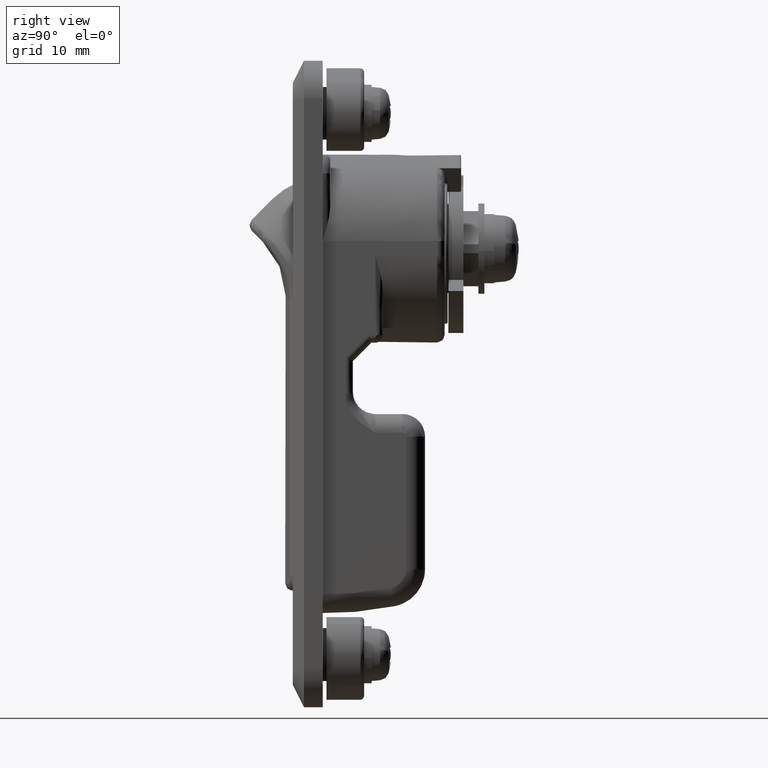
[diagram: clean part render]
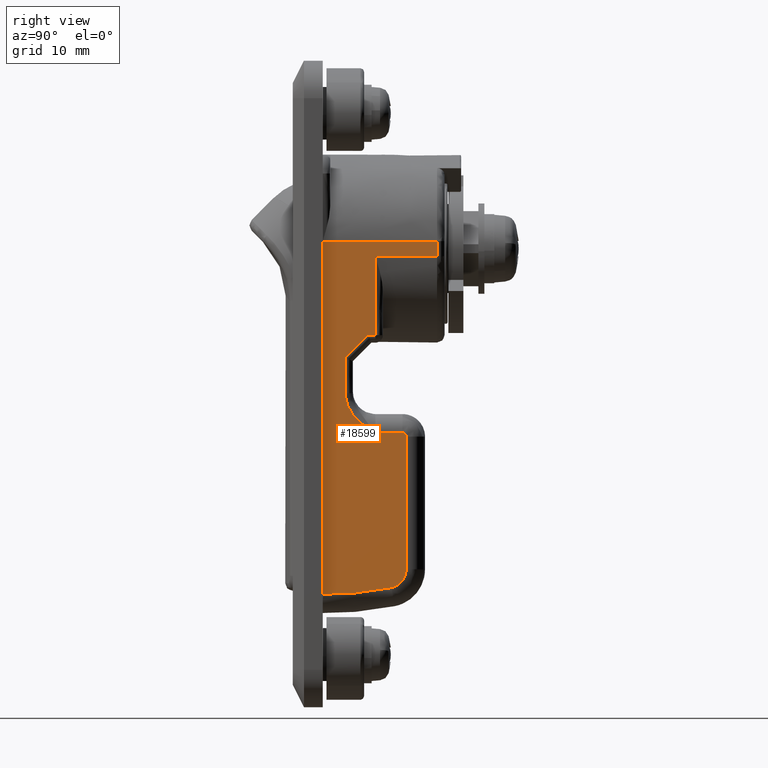
[diagram: same view with one face highlighted and labeled with its STEP entity id]
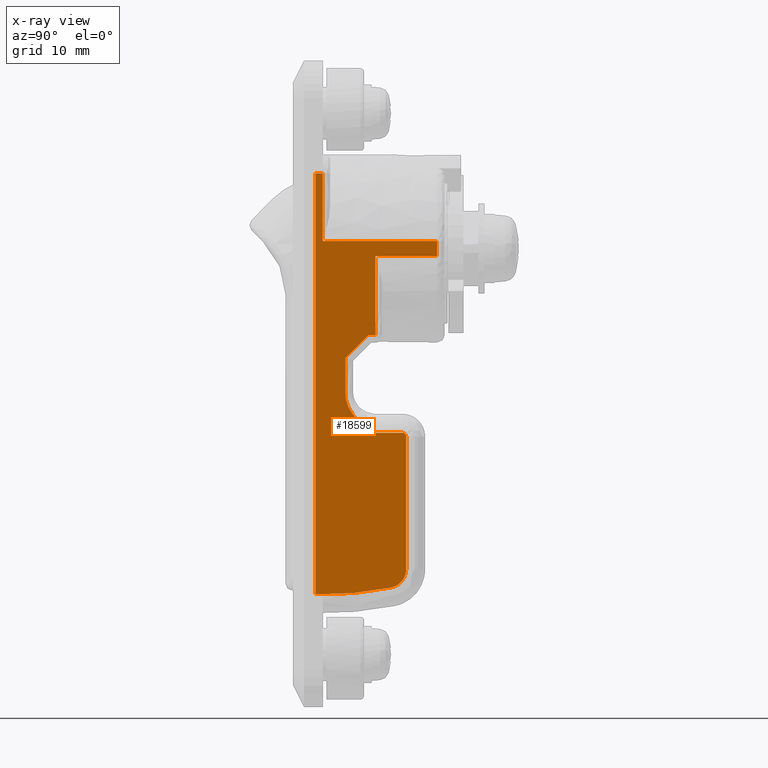
[diagram: x-ray of the same camera — body ghosted, the highlighted face saturated]
A machine part, right view. The second image highlights one B-rep face of the part: STEP entity #18599.
The next image is the same camera in x-ray: the body ghosted, the highlighted face saturated — about 0% of this face is hidden behind the body in this view.
In plain terms, the highlighted face is a freeform B-spline surface patch.
Its self-contained STEP definition (entity closure, byte-faithful):
#14430=CARTESIAN_POINT('',(16.199999999999999,-11.500000000000121,-1.0));
#14431=VERTEX_POINT('',#14430);
#14495=CARTESIAN_POINT('',(16.199999999999999,-11.500000000000000,1.0));
#14496=VERTEX_POINT('',#14495);
#14510=CARTESIAN_POINT('',(16.199999999999999,-11.500000000000121,-1.0));
#14511=CARTESIAN_POINT('',(16.199999999999999,-11.500000000000000,1.0));
#14512=QUASI_UNIFORM_CURVE('',1,(#14510,#14511),.UNSPECIFIED.,.F.,.U.);
#14513=EDGE_CURVE('',#14431,#14496,#14512,.T.);
#14665=CARTESIAN_POINT('',(8.0,-11.500000000000121,-24.500000000000000));
#14666=VERTEX_POINT('',#14665);
#14667=CARTESIAN_POINT('',(4.0,-11.500000000000121,-19.208497377870799));
#14668=VERTEX_POINT('',#14667);
#14669=CARTESIAN_POINT('',(8.000000000000002,-11.500000000000121,-24.500000000000000));
#14670=CARTESIAN_POINT('',(7.969130673969493,-11.500000000000121,-24.481096412407378));
#14671=CARTESIAN_POINT('',(7.937974806305340,-11.500000000000000,-24.462017489735871));
#14672=CARTESIAN_POINT('',(7.875901611696337,-11.500000000000000,-24.423977278645740));
#14673=CARTESIAN_POINT('',(7.782810793043164,-11.500000000000000,-24.366886129903239));
#14674=CARTESIAN_POINT('',(7.689833891630957,-11.500000000000000,-24.309609862286379));
#14675=CARTESIAN_POINT('',(7.504183184958449,-11.500000000000000,-24.194564786871879));
#14676=CARTESIAN_POINT('',(7.380825985567439,-11.500000000000000,-24.117213357005920));
#14677=CARTESIAN_POINT('',(7.013211945717927,-11.500000000000000,-23.881282857850170));
#14678=CARTESIAN_POINT('',(6.771575963275990,-11.500000000000000,-23.718887044286230));
#14679=CARTESIAN_POINT('',(6.419288698598700,-11.500000000000011,-23.460711541892099));
#14680=CARTESIAN_POINT('',(6.303579775447926,-11.500000000000000,-23.372237137580850));
#14681=CARTESIAN_POINT('',(6.077550788619718,-11.500000000000000,-23.190421930667899));
#14682=CARTESIAN_POINT('',(5.967082464897613,-11.500000000000000,-23.096976619177799));
#14683=CARTESIAN_POINT('',(5.644449934997865,-11.500000000000000,-22.807897396800659));
#14684=CARTESIAN_POINT('',(5.441051319862993,-11.500000000000000,-22.603527025465340));
#14685=CARTESIAN_POINT('',(5.157760529947960,-11.500000000000000,-22.275236807085030));
#14686=CARTESIAN_POINT('',(5.066963613870950,-11.500000000000000,-22.162185461727390));
#14687=CARTESIAN_POINT('',(4.936807790217682,-11.500000000000000,-21.986588964401779));
#14688=CARTESIAN_POINT('',(4.894343348183575,-11.500000000000000,-21.926922582685201));
#14689=CARTESIAN_POINT('',(4.812045639956402,-11.500000000000000,-21.806226126503450));
#14690=CARTESIAN_POINT('',(4.772215913928895,-11.500000000000000,-21.745215018055209));
#14691=CARTESIAN_POINT('',(4.579774108379120,-11.500000000000000,-21.436789202429210));
#14692=CARTESIAN_POINT('',(4.447183803077331,-11.500000000000000,-21.179313273001199));
#14693=CARTESIAN_POINT('',(4.310716102949096,-11.500000000000000,-20.842759684646190));
#14694=CARTESIAN_POINT('',(4.284893079798216,-11.500000000000000,-20.774710011629029));
#14695=CARTESIAN_POINT('',(4.236286354010994,-11.500000000000000,-20.637083364425010));
#14696=CARTESIAN_POINT('',(4.213457825414427,-11.500000000000000,-20.567343405942800));
#14697=CARTESIAN_POINT('',(4.150210763630195,-11.500000000000000,-20.357499301955659));
#14698=CARTESIAN_POINT('',(4.114893133432502,-11.500000000000000,-20.216511496310410));
#14699=CARTESIAN_POINT('',(4.029571784867271,-11.500000000000000,-19.790258471033319));
#14700=CARTESIAN_POINT('',(3.999999999999998,-11.500000000000121,-19.501735469759069));
#14701=CARTESIAN_POINT('',(4.0,-11.500000000000121,-19.208497377870799));
#14702=B_SPLINE_CURVE_WITH_KNOTS('',3,(#14669,#14670,#14671,#14672,#14673,#14674,#14675,#14676,#14677,#14678,#14679,#14680,#14681,#14682,#14683,#14684,#14685,#14686,#14687,#14688,#14689,#14690,#14691,#14692,#14693,#14694,#14695,#14696,#14697,#14698,#14699,#14700,#14701),.UNSPECIFIED.,.F.,.U.,(4,2,1,2,2,2,2,2,2,2,2,2,2,2,2,2,4),(0.0,0.015625000000000,0.031250000000000,0.062500000000000,0.125000000000000,0.250000000000000,0.312500000000000,0.375000000000001,0.500000000000002,0.562500000000003,0.593750000000003,0.625000000000003,0.750000000000006,0.781250000000006,0.812500000000006,0.875000000000004,1.0),.UNSPECIFIED.);
#14703=EDGE_CURVE('',#14666,#14668,#14702,.T.);
#14774=CARTESIAN_POINT('',(4.0,-11.500000000000121,-14.536248437626959));
#14775=VERTEX_POINT('',#14774);
#14791=CARTESIAN_POINT('',(4.0,-11.500000000000121,-19.208497377870799));
#14792=CARTESIAN_POINT('',(4.0,-11.500000000000121,-14.536248437626959));
#14793=QUASI_UNIFORM_CURVE('',1,(#14791,#14792),.UNSPECIFIED.,.F.,.U.);
#14794=EDGE_CURVE('',#14668,#14775,#14793,.T.);
#14821=CARTESIAN_POINT('',(7.036248437626880,-11.500000000000121,-11.500000000000000));
#14822=VERTEX_POINT('',#14821);
#14836=CARTESIAN_POINT('',(4.0,-11.500000000000121,-14.536248437626959));
#14837=CARTESIAN_POINT('',(7.036248437626880,-11.500000000000121,-11.500000000000000));
#14838=QUASI_UNIFORM_CURVE('',1,(#14836,#14837),.UNSPECIFIED.,.F.,.U.);
#14839=EDGE_CURVE('',#14775,#14822,#14838,.T.);
#14866=CARTESIAN_POINT('',(7.999999999999900,-11.500000000000121,-11.500000000000000));
#14867=VERTEX_POINT('',#14866);
#14881=CARTESIAN_POINT('',(7.036248437626880,-11.500000000000121,-11.500000000000000));
#14882=CARTESIAN_POINT('',(7.999999999999900,-11.500000000000121,-11.500000000000000));
#14883=QUASI_UNIFORM_CURVE('',1,(#14881,#14882),.UNSPECIFIED.,.F.,.U.);
#14884=EDGE_CURVE('',#14822,#14867,#14883,.T.);
#14975=CARTESIAN_POINT('',(7.999999999999900,-11.500000000000121,-1.0));
#14976=VERTEX_POINT('',#14975);
#15001=CARTESIAN_POINT('',(7.999999999999900,-11.500000000000121,-11.500000000000000));
#15002=CARTESIAN_POINT('',(7.999999999999900,-11.500000000000121,-1.0));
#15003=QUASI_UNIFORM_CURVE('',1,(#15001,#15002),.UNSPECIFIED.,.F.,.U.);
#15004=EDGE_CURVE('',#14867,#14976,#15003,.T.);
#15826=CARTESIAN_POINT('',(1.0,-11.500000000000121,10.0));
#15827=VERTEX_POINT('',#15826);
#15889=CARTESIAN_POINT('',(1.0,-11.500000000000000,1.0));
#15890=VERTEX_POINT('',#15889);
#15921=CARTESIAN_POINT('',(1.0,-11.500000000000000,1.0));
#15922=CARTESIAN_POINT('',(1.0,-11.500000000000121,10.0));
#15923=QUASI_UNIFORM_CURVE('',1,(#15921,#15922),.UNSPECIFIED.,.F.,.U.);
#15924=EDGE_CURVE('',#15890,#15827,#15923,.T.);
#16195=CARTESIAN_POINT('',(0.0,-11.500000000000121,10.0));
#16196=VERTEX_POINT('',#16195);
#16197=CARTESIAN_POINT('',(1.0,-11.500000000000121,10.0));
#16198=CARTESIAN_POINT('',(0.0,-11.500000000000121,10.0));
#16199=QUASI_UNIFORM_CURVE('',1,(#16197,#16198),.UNSPECIFIED.,.F.,.U.);
#16200=EDGE_CURVE('',#15827,#16196,#16199,.T.);
#16304=CARTESIAN_POINT('',(12.100000000000000,-11.500000000000121,-25.0));
#16305=VERTEX_POINT('',#16304);
#16336=CARTESIAN_POINT('',(11.600000000000000,-11.500000000000121,-24.500000000000000));
#16337=VERTEX_POINT('',#16336);
#16351=CARTESIAN_POINT('',(12.100000000000000,-11.500000000000121,-25.0));
#16352=CARTESIAN_POINT('',(12.099999999999998,-11.500000000000119,-24.500000000000004));
#16353=CARTESIAN_POINT('',(11.600000000000000,-11.500000000000121,-24.500000000000000));
#16361=(BOUNDED_CURVE()B_SPLINE_CURVE(2,(#16351,#16352,#16353),.UNSPECIFIED.,.F.,.U.)CURVE()GEOMETRIC_REPRESENTATION_ITEM()QUASI_UNIFORM_CURVE()RATIONAL_B_SPLINE_CURVE((1.0,0.707106781186548,1.0))REPRESENTATION_ITEM(''));
#16362=EDGE_CURVE('',#16305,#16337,#16361,.T.);
#16381=CARTESIAN_POINT('',(12.100000000000000,-11.500000000000121,-42.641411796515349));
#16382=VERTEX_POINT('',#16381);
#16404=CARTESIAN_POINT('',(12.100000000000000,-11.500000000000121,-42.641411796515349));
#16405=CARTESIAN_POINT('',(12.100000000000000,-11.500000000000121,-25.0));
#16406=QUASI_UNIFORM_CURVE('',1,(#16404,#16405),.UNSPECIFIED.,.F.,.U.);
#16407=EDGE_CURVE('',#16382,#16305,#16406,.T.);
#16447=CARTESIAN_POINT('',(10.094252873563200,-11.500000000000121,-45.092067646889802));
#16448=VERTEX_POINT('',#16447);
#16476=CARTESIAN_POINT('',(10.094252873563200,-11.500000000000121,-45.092067646889802));
#16477=CARTESIAN_POINT('',(12.100000000000000,-11.500000000000117,-44.687544800186927));
#16478=CARTESIAN_POINT('',(12.100000000000000,-11.500000000000121,-42.641411796515349));
#16486=(BOUNDED_CURVE()B_SPLINE_CURVE(2,(#16476,#16477,#16478),.UNSPECIFIED.,.F.,.U.)CURVE()GEOMETRIC_REPRESENTATION_ITEM()QUASI_UNIFORM_CURVE()RATIONAL_B_SPLINE_CURVE((1.0,0.773854362727665,1.0))REPRESENTATION_ITEM(''));
#16487=EDGE_CURVE('',#16448,#16382,#16486,.T.);
#16923=CARTESIAN_POINT('',(11.600000000000000,-11.500000000000121,-24.500000000000000));
#16924=CARTESIAN_POINT('',(8.0,-11.500000000000121,-24.500000000000000));
#16925=QUASI_UNIFORM_CURVE('',1,(#16923,#16924),.UNSPECIFIED.,.F.,.U.);
#16926=EDGE_CURVE('',#16337,#14666,#16925,.T.);
#17085=CARTESIAN_POINT('',(0.0,-11.500000000000121,-45.989129150267701));
#17086=VERTEX_POINT('',#17085);
#17087=CARTESIAN_POINT('',(7.589415E-015,-11.500000000000121,-45.989129150267672));
#17088=CARTESIAN_POINT('',(5.096835740000390,-11.500000000000117,-46.099956118165814));
#17089=CARTESIAN_POINT('',(10.094252873563200,-11.500000000000121,-45.092067646889817));
#17097=(BOUNDED_CURVE()B_SPLINE_CURVE(2,(#17087,#17088,#17089),.UNSPECIFIED.,.F.,.U.)CURVE()GEOMETRIC_REPRESENTATION_ITEM()QUASI_UNIFORM_CURVE()RATIONAL_B_SPLINE_CURVE((1.0,0.993914692193070,1.0))REPRESENTATION_ITEM(''));
#17098=EDGE_CURVE('',#17086,#16448,#17097,.T.);
#18564=CARTESIAN_POINT('',(-0.809189968601254,-11.500000000000121,-48.796010715133171));
#18565=CARTESIAN_POINT('',(-0.809189968601254,-11.500000000000121,12.797144819987411));
#18566=CARTESIAN_POINT('',(17.009190403119121,-11.500000000000121,-48.796010715133157));
#18567=CARTESIAN_POINT('',(17.009190403119121,-11.500000000000121,12.797144819987411));
#18568=B_SPLINE_SURFACE_WITH_KNOTS('',1,1,((#18564,#18566),(#18565,#18567)),.UNSPECIFIED.,.F.,.F.,.U.,(2,2),(2,2),(0.0,61.593155535120573),(0.0,17.818380371720380),.UNSPECIFIED.);
#18569=CARTESIAN_POINT('',(16.199999999999999,-11.500000000000121,-1.0));
#18570=CARTESIAN_POINT('',(7.999999999999900,-11.500000000000121,-1.0));
#18571=QUASI_UNIFORM_CURVE('',1,(#18569,#18570),.UNSPECIFIED.,.F.,.U.);
#18572=EDGE_CURVE('',#14431,#14976,#18571,.T.);
#18573=ORIENTED_EDGE('',*,*,#18572,.F.);
#18574=ORIENTED_EDGE('',*,*,#14513,.T.);
#18575=CARTESIAN_POINT('',(16.199999999999999,-11.500000000000000,1.0));
#18576=CARTESIAN_POINT('',(1.0,-11.500000000000000,1.0));
#18577=QUASI_UNIFORM_CURVE('',1,(#18575,#18576),.UNSPECIFIED.,.F.,.U.);
#18578=EDGE_CURVE('',#14496,#15890,#18577,.T.);
#18579=ORIENTED_EDGE('',*,*,#18578,.T.);
#18580=ORIENTED_EDGE('',*,*,#15924,.T.);
#18581=ORIENTED_EDGE('',*,*,#16200,.T.);
#18582=CARTESIAN_POINT('',(0.0,-11.500000000000121,10.0));
#18583=CARTESIAN_POINT('',(0.0,-11.500000000000121,-45.989129150267701));
#18584=QUASI_UNIFORM_CURVE('',1,(#18582,#18583),.UNSPECIFIED.,.F.,.U.);
#18585=EDGE_CURVE('',#16196,#17086,#18584,.T.);
#18586=ORIENTED_EDGE('',*,*,#18585,.T.);
#18587=ORIENTED_EDGE('',*,*,#17098,.T.);
#18588=ORIENTED_EDGE('',*,*,#16487,.T.);
#18589=ORIENTED_EDGE('',*,*,#16407,.T.);
#18590=ORIENTED_EDGE('',*,*,#16362,.T.);
#18591=ORIENTED_EDGE('',*,*,#16926,.T.);
#18592=ORIENTED_EDGE('',*,*,#14703,.T.);
#18593=ORIENTED_EDGE('',*,*,#14794,.T.);
#18594=ORIENTED_EDGE('',*,*,#14839,.T.);
#18595=ORIENTED_EDGE('',*,*,#14884,.T.);
#18596=ORIENTED_EDGE('',*,*,#15004,.T.);
#18597=EDGE_LOOP('',(#18573,#18574,#18579,#18580,#18581,#18586,#18587,#18588,#18589,#18590,#18591,#18592,#18593,#18594,#18595,#18596));
#18598=FACE_OUTER_BOUND('',#18597,.T.);
#18599=ADVANCED_FACE('',(#18598),#18568,.F.);